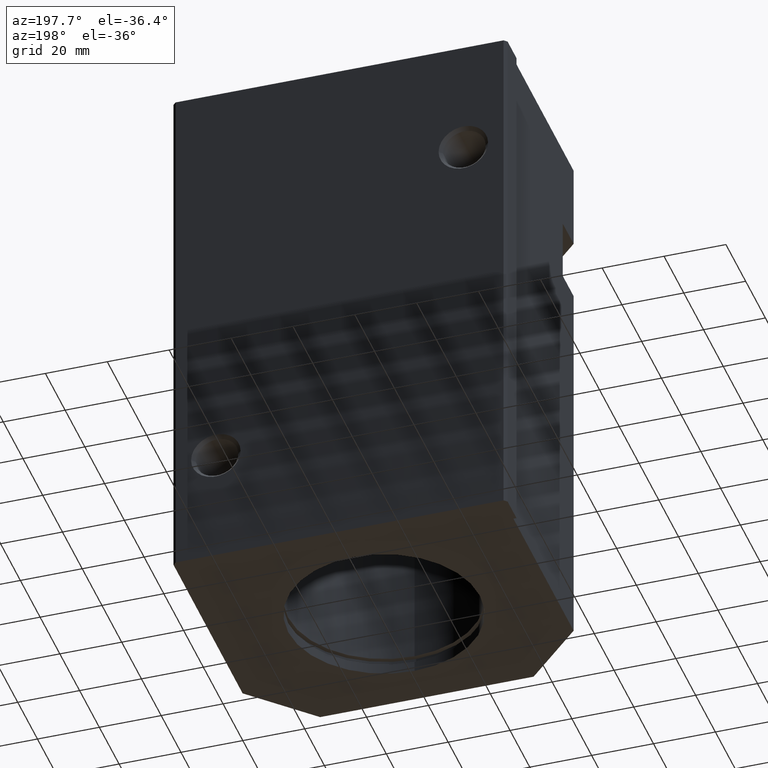
[diagram: clean part render]
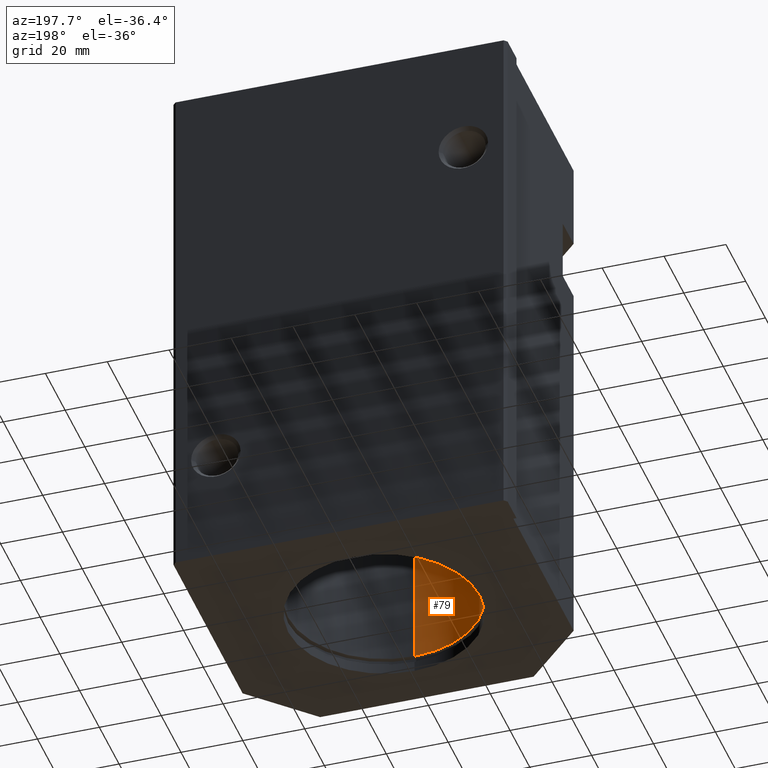
[diagram: same view with one face highlighted and labeled with its STEP entity id]
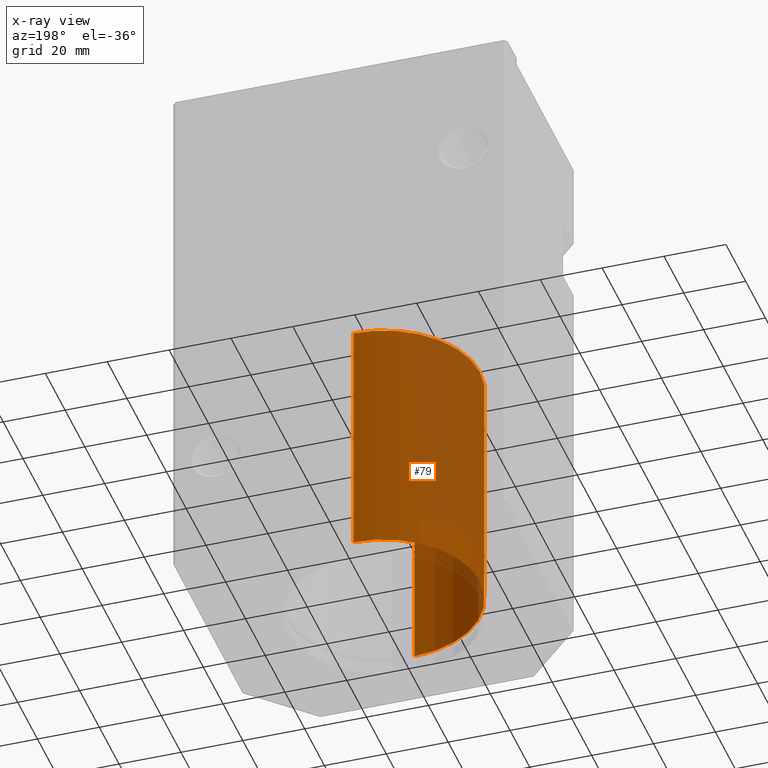
[diagram: x-ray of the same camera — body ghosted, the highlighted face saturated]
A machine part, auxiliary view. The second image highlights one B-rep face of the part: STEP entity #79.
The next image is the same camera in x-ray: the body ghosted, the highlighted face saturated — about 40% of this face is hidden behind the body in this view.
In plain terms, the highlighted cylindrical surface (partial cylindrical patch) has radius 31 mm, axis along (-0, -0, -1).
Its self-contained STEP definition (entity closure, byte-faithful):
#79 = ADVANCED_FACE( '', ( #147 ), #148, .F. );
#147 = FACE_OUTER_BOUND( '', #290, .T. );
#148 = CYLINDRICAL_SURFACE( '', #291, 31.0000000000000 );
#290 = EDGE_LOOP( '', ( #453, #454, #455, #456 ) );
#291 = AXIS2_PLACEMENT_3D( '', #457, #458, #459 );
#453 = ORIENTED_EDGE( '', *, *, #930, .F. );
#454 = ORIENTED_EDGE( '', *, *, #931, .T. );
#455 = ORIENTED_EDGE( '', *, *, #932, .F. );
#456 = ORIENTED_EDGE( '', *, *, #933, .F. );
#457 = CARTESIAN_POINT( '', ( 0.000000000000000, 45.0000000000000, 45.6000000000000 ) );
#458 = DIRECTION( '', ( -0.000000000000000, -0.000000000000000, -1.00000000000000 ) );
#459 = DIRECTION( '', ( -2.44921270764460E-016, 1.00000000000000, 0.000000000000000 ) );
#930 = EDGE_CURVE( '', #1096, #1097, #1098, .T. );
#931 = EDGE_CURVE( '', #1096, #1099, #1100, .T. );
#932 = EDGE_CURVE( '', #1101, #1099, #1102, .T. );
#933 = EDGE_CURVE( '', #1097, #1101, #1103, .T. );
#1096 = VERTEX_POINT( '', #1352 );
#1097 = VERTEX_POINT( '', #1353 );
#1098 = LINE( '', #1354, #1355 );
#1099 = VERTEX_POINT( '', #1356 );
#1100 = CIRCLE( '', #1357, 31.0000000000000 );
#1101 = VERTEX_POINT( '', #1358 );
#1102 = LINE( '', #1359, #1360 );
#1103 = CIRCLE( '', #1361, 31.0000000000000 );
#1352 = CARTESIAN_POINT( '', ( -7.59255939369874E-015, 76.0000000000000, 85.6000000000000 ) );
#1353 = CARTESIAN_POINT( '', ( -7.59255939369874E-015, 76.0000000000000, 5.60000000000001 ) );
#1354 = CARTESIAN_POINT( '', ( -3.79627969684888E-015, 76.0000000000000, 45.6000000000000 ) );
#1355 = VECTOR( '', #1726, 1.00000000000000 );
#1356 = CARTESIAN_POINT( '', ( 3.79627969684888E-015, 14.0000000000000, 85.6000000000000 ) );
#1357 = AXIS2_PLACEMENT_3D( '', #1727, #1728, #1729 );
#1358 = CARTESIAN_POINT( '', ( 3.79627969684888E-015, 14.0000000000000, 5.60000000000002 ) );
#1359 = CARTESIAN_POINT( '', ( 3.79627969684888E-015, 14.0000000000000, 45.6000000000000 ) );
#1360 = VECTOR( '', #1730, 1.00000000000000 );
#1361 = AXIS2_PLACEMENT_3D( '', #1731, #1732, #1733 );
#1726 = DIRECTION( '', ( 0.000000000000000, -0.000000000000000, -1.00000000000000 ) );
#1727 = CARTESIAN_POINT( '', ( 0.000000000000000, 45.0000000000000, 85.6000000000000 ) );
#1728 = DIRECTION( '', ( 0.000000000000000, 0.000000000000000, 1.00000000000000 ) );
#1729 = DIRECTION( '', ( -2.44921270764460E-016, 1.00000000000000, 0.000000000000000 ) );
#1730 = DIRECTION( '', ( 0.000000000000000, -0.000000000000000, 1.00000000000000 ) );
#1731 = CARTESIAN_POINT( '', ( 0.000000000000000, 45.0000000000000, 5.60000000000002 ) );
#1732 = DIRECTION( '', ( 0.000000000000000, 0.000000000000000, 1.00000000000000 ) );
#1733 = DIRECTION( '', ( -2.44921270764460E-016, 1.00000000000000, 0.000000000000000 ) );